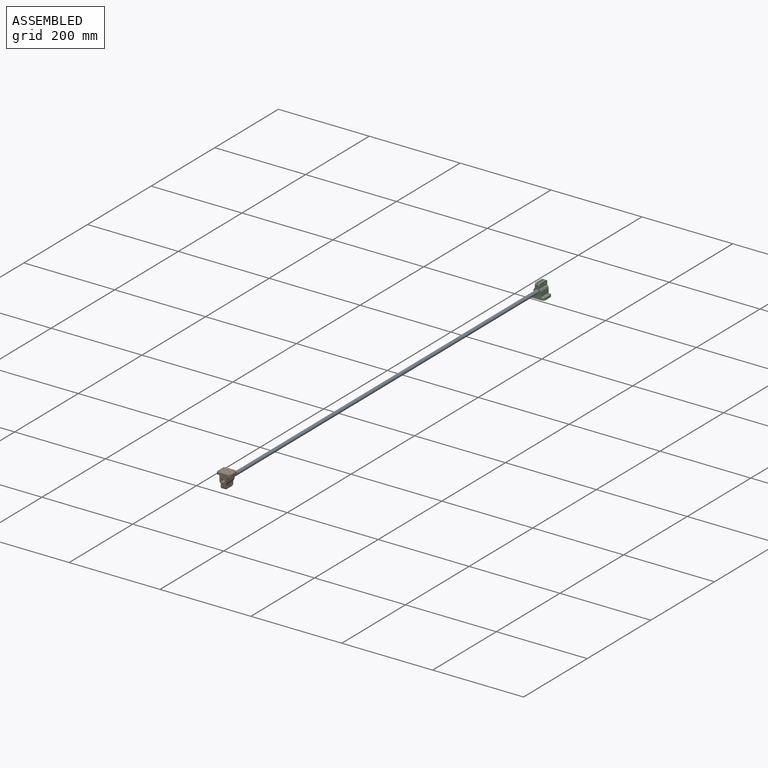
[diagram: assembled view]
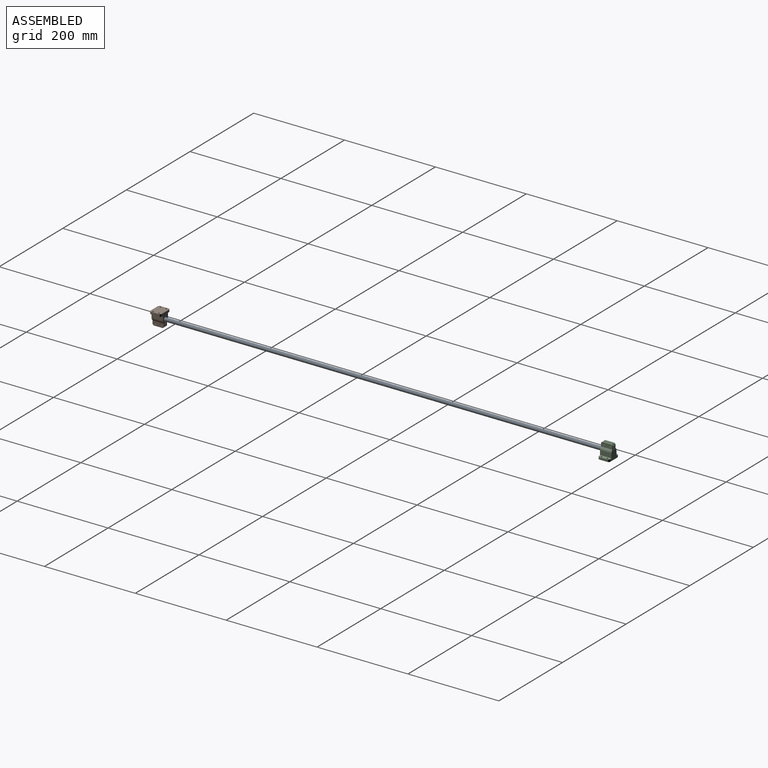
[diagram: assembled view, second angle]
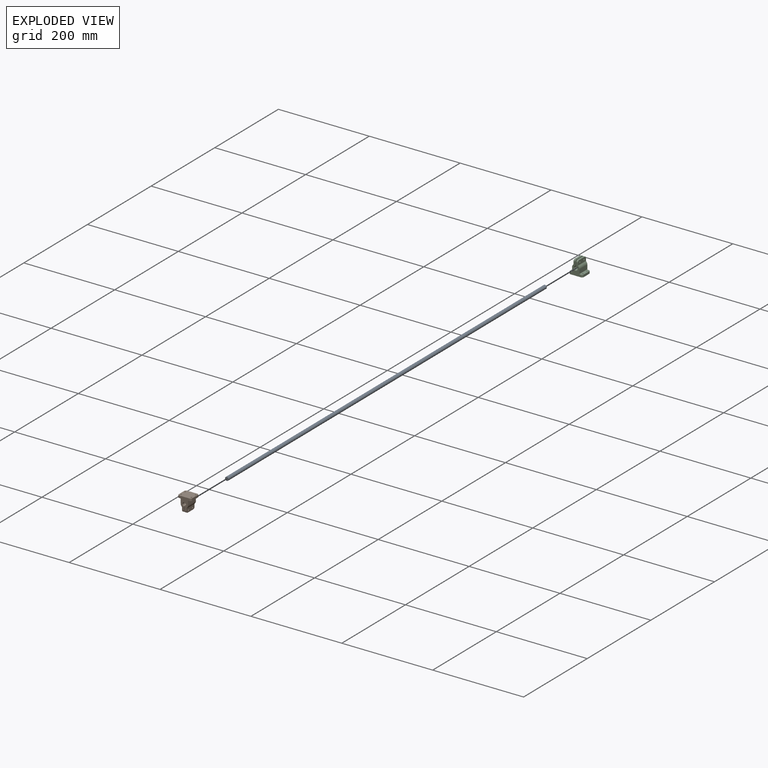
[diagram: exploded view]
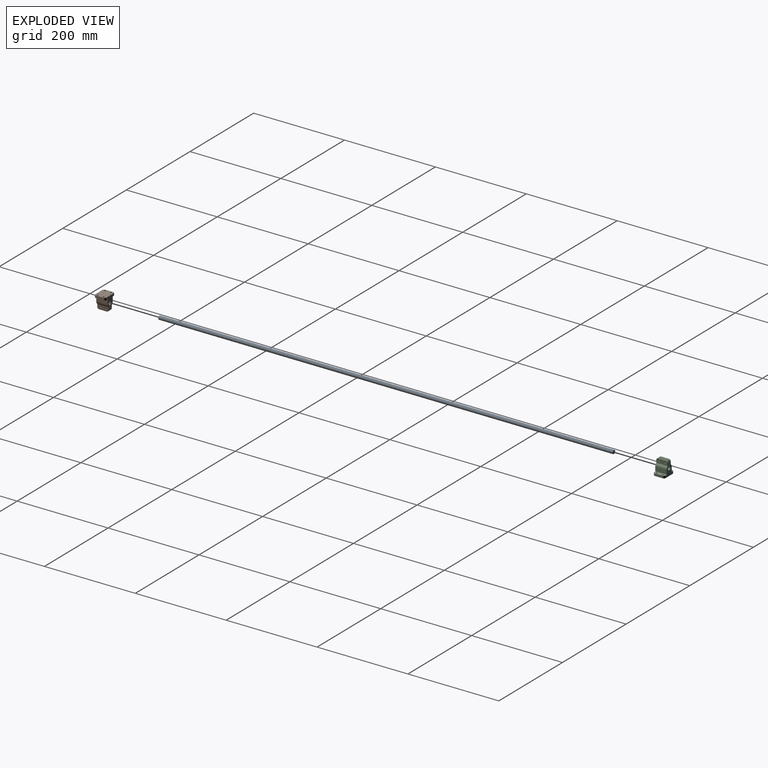
[diagram: exploded view, second angle]
ASSEMBLY  parts=3 mates=2
PART A: 3 faces, bbox 8x1000x8 mm
  f0: cylinder r=4mm len=1000mm, axis (0,1,0), area 25132.7mm2, adj f1,f2
  f1: plane 8x8mm, normal (0,-1,0), area 50.3mm2, adj f0
  f2: plane 8x8mm, normal (0,1,0), area 50.3mm2, adj f0
PART B: 39 faces, bbox 30x25x31.2 mm
  f0: plane 25x6mm, normal (0,0,1), area 128mm2, adj f1,f16,f17,f26,f27,f31,f35,f37
  f1: plane 17x5mm, normal (-1,0,0), area 85mm2, adj f0,f2,f31,f35
  f2: plane 30x25mm, normal (0,0,-1), area 706.1mm2, adj f1,f3,f16,f17,f24,f25,f26,f27
  f3: plane 17x5mm, normal (1,0,0), area 85mm2, adj f2,f4,f30,f34
  f4: plane 25x6mm, normal (0,0,1), area 128mm2, adj f3,f16,f17,f24,f25,f30,f34,f36
  f5: plane 25x9mm, normal (1,0,0), area 225mm2, adj f6,f16,f17,f36
  f6: cylinder r=8mm len=25mm, axis (0,1,0), area 159.1mm2, adj f5,f16,f17,f19
  f7: plane 25x9.1mm, normal (1,0,0), area 205.6mm2, adj f8,f16,f17,f19,f22,f23,f28,f32
  f8: plane 17x4mm, normal (0,0,1), area 68mm2, adj f7,f9,f28,f32
  f9: plane 25x12.32mm, normal (-1,0,0), area 285.8mm2, adj f8,f10,f16,f17,f22,f23,f28,f32
  f10: cylinder r=4.05mm len=24mm, axis (0,1,0), area 562.2mm2, adj f9,f11,f17,f38
  f11: plane 25x12.32mm, normal (1,0,0), area 285.8mm2, adj f10,f12,f16,f17,f20,f21,f29,f33
  f12: plane 17x4mm, normal (0,0,1), area 68mm2, adj f11,f13,f29,f33
  f13: plane 25x9.1mm, normal (-1,0,0), area 205.6mm2, adj f12,f16,f17,f18,f20,f21,f29,f33
  f14: cylinder r=8mm len=25mm, axis (0,1,0), area 159.1mm2, adj f15,f16,f17,f18
  f15: plane 25x9mm, normal (-1,0,0), area 225mm2, adj f14,f16,f17,f37
  f16: plane 27.25x22mm, normal (0,-1,0), area 324.6mm2, adj f0,f2,f4,f5,f6,f7,f9,f11
  f17: plane 27.25x22mm, normal (0,1,0), area 351.2mm2, adj f0,f2,f4,f5,f6,f7,f9,f10
  f18: cylinder r=2mm len=25mm, axis (0,1,0), area 39.8mm2, adj f13,f14,f16,f17
  f19: cylinder r=2mm len=25mm, axis (0,1,0), area 39.8mm2, adj f6,f7,f16,f17
  f20: cylinder r=1.55mm len=4mm, axis (1,0,0), area 39mm2, adj f11,f13
  f21: cylinder r=1.55mm len=4mm, axis (1,0,0), area 39mm2, adj f11,f13
  f22: cylinder r=1.55mm len=4mm, axis (1,0,0), area 39mm2, adj f7,f9
  f23: cylinder r=1.55mm len=4mm, axis (1,0,0), area 39mm2, adj f7,f9
  f24: cylinder r=1.55mm len=5mm, axis (0,0,1), area 48.7mm2, adj f2,f4
  f25: cylinder r=1.55mm len=5mm, axis (0,0,1), area 48.7mm2, adj f2,f4
  f26: cylinder r=1.55mm len=5mm, axis (0,0,1), area 48.7mm2, adj f0,f2
  f27: cylinder r=1.55mm len=5mm, axis (0,0,1), area 48.7mm2, adj f0,f2
  f28: cylinder r=4mm len=4mm, axis (-1,0,0), area 25.1mm2, adj f7,f8,f9,f17
  f29: cylinder r=4mm len=4mm, axis (-1,0,0), area 25.1mm2, adj f11,f12,f13,f17
  f30: cylinder r=4mm len=5mm, axis (0,0,1), area 31.4mm2, adj f2,f3,f4,f17
  f31: cylinder r=4mm len=5mm, axis (0,0,-1), area 31.4mm2, adj f0,f1,f2,f17
  f32: cylinder r=4mm len=4mm, axis (1,0,0), area 25.1mm2, adj f7,f8,f9,f16
  f33: cylinder r=4mm len=4mm, axis (1,0,0), area 25.1mm2, adj f11,f12,f13,f16
  f34: cylinder r=4mm len=5mm, axis (0,0,-1), area 31.4mm2, adj f2,f3,f4,f16
  f35: cylinder r=4mm len=5mm, axis (0,0,1), area 31.4mm2, adj f0,f1,f2,f16
  f36: cylinder r=1mm len=25mm, axis (0,-1,0), area 39.3mm2, adj f4,f5,f16,f17
  f37: cylinder r=1mm len=25mm, axis (0,1,0), area 39.3mm2, adj f0,f15,f16,f17
  f38: torus R=5.05mm, axis (0,-1,0), area 40.4mm2, adj f9,f10,f11,f16
PART C: same geometry as B
PLACE A rot(axis=(1,0,0),0deg) t=(266.91,0,306.71)mm
PLACE B rot(axis=(-1,0,0),180deg) t=(266.91,-1012,306.71)mm
PLACE C t=(266.91,0,306.71)mm
MATE slider A.f0 <-> C.f6  axis (0,1,0) through (266.91,0,306.71)mm
MATE slider B.f6 <-> A.f0  axis (0,-1,0) through (266.91,-1012,306.71)mm
